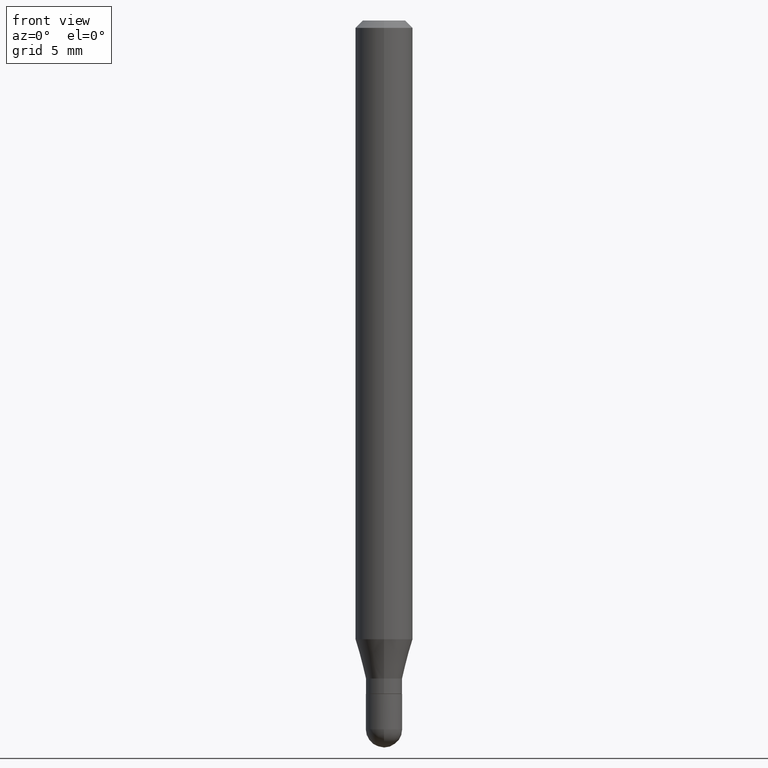
[diagram: clean part render]
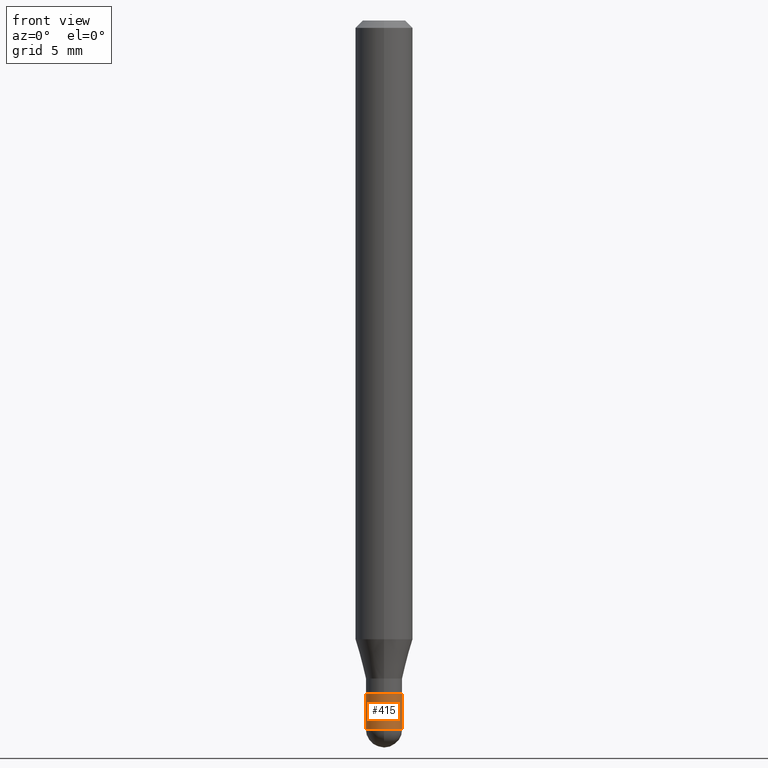
[diagram: same view with one face highlighted and labeled with its STEP entity id]
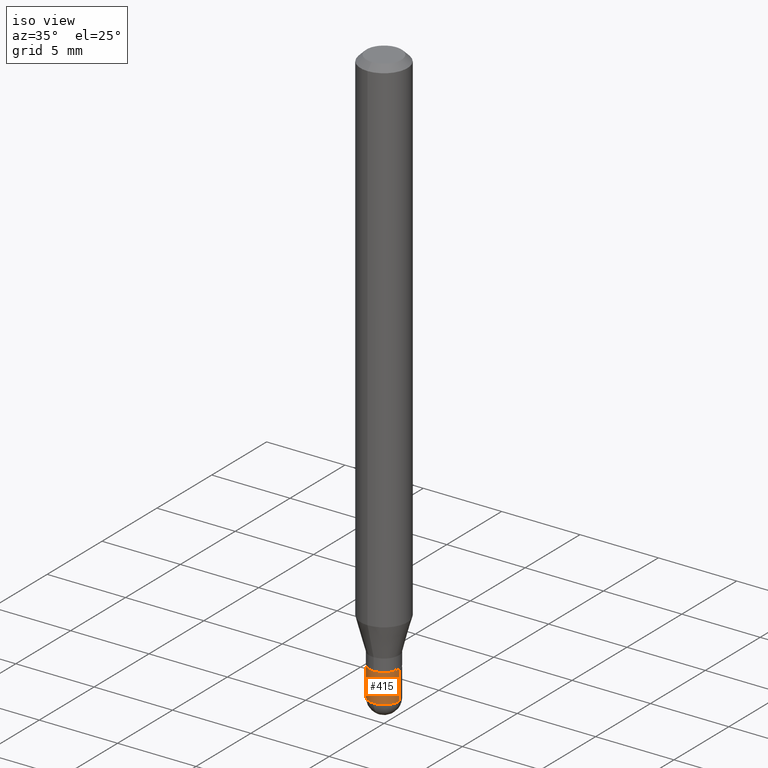
[diagram: same view with one face highlighted and labeled with its STEP entity id]
A machine part, front view. The second image highlights one B-rep face of the part: STEP entity #415.
A second angle (iso view) of the same face is appended — the face is thin or edge-on in the first view.
In plain terms, the highlighted cylindrical surface (edge-blend (fillet) strip) has radius 0.95 mm, axis along (-0, 0, 1).
Its self-contained STEP definition (entity closure, byte-faithful):
#16 = EDGE_CURVE ( 'NONE', #126, #35, #492, .T. ) ;
#35 = VERTEX_POINT ( 'NONE', #143 ) ;
#47 = CIRCLE ( 'NONE', #510, 0.03739999999999999575 ) ;
#48 = CARTESIAN_POINT ( 'NONE',  ( -0.03740000000000000269, -4.700190925062328088E-15, -1.385899999999999910 ) ) ;
#87 = ORIENTED_EDGE ( 'NONE', *, *, #152, .F. ) ;
#105 = ORIENTED_EDGE ( 'NONE', *, *, #16, .T. ) ;
#111 = VECTOR ( 'NONE', #508, 39.37007874015748143 ) ;
#118 = CIRCLE ( 'NONE', #395, 0.03739999999999999575 ) ;
#122 = CARTESIAN_POINT ( 'NONE',  ( 0.03739999999999999575, -5.227096712382071878E-15, -1.458699999999999886 ) ) ;
#126 = VERTEX_POINT ( 'NONE', #122 ) ;
#138 = FACE_OUTER_BOUND ( 'NONE', #409, .T. ) ;
#143 = CARTESIAN_POINT ( 'NONE',  ( 0.03740000000000000269, -5.100006791648181685E-15, -1.385899999999999910 ) ) ;
#145 = CARTESIAN_POINT ( 'NONE',  ( -0.03739999999999999575, -4.700190925062328088E-15, -1.458699999999999886 ) ) ;
#148 = VECTOR ( 'NONE', #385, 39.37007874015748143 ) ;
#152 = EDGE_CURVE ( 'NONE', #470, #369, #316, .T. ) ;
#154 = CARTESIAN_POINT ( 'NONE',  ( 0.03739999999999999575, -2.611628041454663509E-16, 1.823690114147680082E-30 ) ) ;
#156 = CARTESIAN_POINT ( 'NONE',  ( -0.03739999999999999575, 2.657429831742774393E-16, -1.839681723755334690E-30 ) ) ;
#163 = DIRECTION ( 'NONE',  ( -2.445468806185136597E-29, 3.491481338843145583E-15, 1.000000000000000000 ) ) ;
#203 = DIRECTION ( 'NONE',  ( 1.000000000000000000, -6.982962677686276177E-15, 0.000000000000000000 ) ) ;
#210 = DIRECTION ( 'NONE',  ( -2.445468806185136597E-29, 3.491481338843145583E-15, 1.000000000000000000 ) ) ;
#218 = ORIENTED_EDGE ( 'NONE', *, *, #507, .T. ) ;
#225 = EDGE_CURVE ( 'NONE', #369, #35, #408, .T. ) ;
#240 = CARTESIAN_POINT ( 'NONE',  ( 3.567205347582258439E-29, -5.093023828970496460E-15, -1.458699999999999886 ) ) ;
#249 = DIRECTION ( 'NONE',  ( 1.000000000000000000, -6.982962677686274599E-15, 0.000000000000000000 ) ) ;
#250 = EDGE_CURVE ( 'NONE', #402, #126, #47, .T. ) ;
#261 = CARTESIAN_POINT ( 'NONE',  ( 0.000000000000000000, 0.000000000000000000, 0.000000000000000000 ) ) ;
#286 = DIRECTION ( 'NONE',  ( -2.445468806185136597E-29, 3.491481338843145583E-15, 1.000000000000000000 ) ) ;
#289 = DIRECTION ( 'NONE',  ( 1.000000000000000000, -6.982962677686276177E-15, 0.000000000000000000 ) ) ;
#298 = DIRECTION ( 'NONE',  ( -2.445468806185136597E-29, 3.491481338843145583E-15, 1.000000000000000000 ) ) ;
#308 = AXIS2_PLACEMENT_3D ( 'NONE', #261, #298, #412 ) ;
#316 = LINE ( 'NONE', #156, #111 ) ;
#324 = CARTESIAN_POINT ( 'NONE',  ( 3.567205347582258439E-29, -5.093023828970496460E-15, -1.458699999999999886 ) ) ;
#325 = AXIS2_PLACEMENT_3D ( 'NONE', #360, #286, #249 ) ;
#332 = CYLINDRICAL_SURFACE ( 'NONE', #308, 0.03739999999999999575 ) ;
#350 = ORIENTED_EDGE ( 'NONE', *, *, #225, .F. ) ;
#360 = CARTESIAN_POINT ( 'NONE',  ( 3.389175218491980624E-29, -4.838843987502714496E-15, -1.385899999999999910 ) ) ;
#369 = VERTEX_POINT ( 'NONE', #48 ) ;
#372 = CARTESIAN_POINT ( 'NONE',  ( -2.611628041454302112E-16, -0.03740000000000502645, -1.458699999999999886 ) ) ;
#385 = DIRECTION ( 'NONE',  ( -2.445468806185136877E-29, 3.491481338843145188E-15, 1.000000000000000000 ) ) ;
#395 = AXIS2_PLACEMENT_3D ( 'NONE', #240, #163, #203 ) ;
#402 = VERTEX_POINT ( 'NONE', #372 ) ;
#408 = CIRCLE ( 'NONE', #325, 0.03740000000000000269 ) ;
#409 = EDGE_LOOP ( 'NONE', ( #87, #218, #485, #105, #350 ) ) ;
#412 = DIRECTION ( 'NONE',  ( 1.000000000000000000, -6.982962677686266711E-15, 4.876176775795936353E-29 ) ) ;
#415 = ADVANCED_FACE ( 'NONE', ( #138 ), #332, .T. ) ;
#470 = VERTEX_POINT ( 'NONE', #145 ) ;
#485 = ORIENTED_EDGE ( 'NONE', *, *, #250, .T. ) ;
#492 = LINE ( 'NONE', #154, #148 ) ;
#507 = EDGE_CURVE ( 'NONE', #470, #402, #118, .T. ) ;
#508 = DIRECTION ( 'NONE',  ( -2.445468806185136877E-29, 3.491481338843145188E-15, 1.000000000000000000 ) ) ;
#510 = AXIS2_PLACEMENT_3D ( 'NONE', #324, #210, #289 ) ;